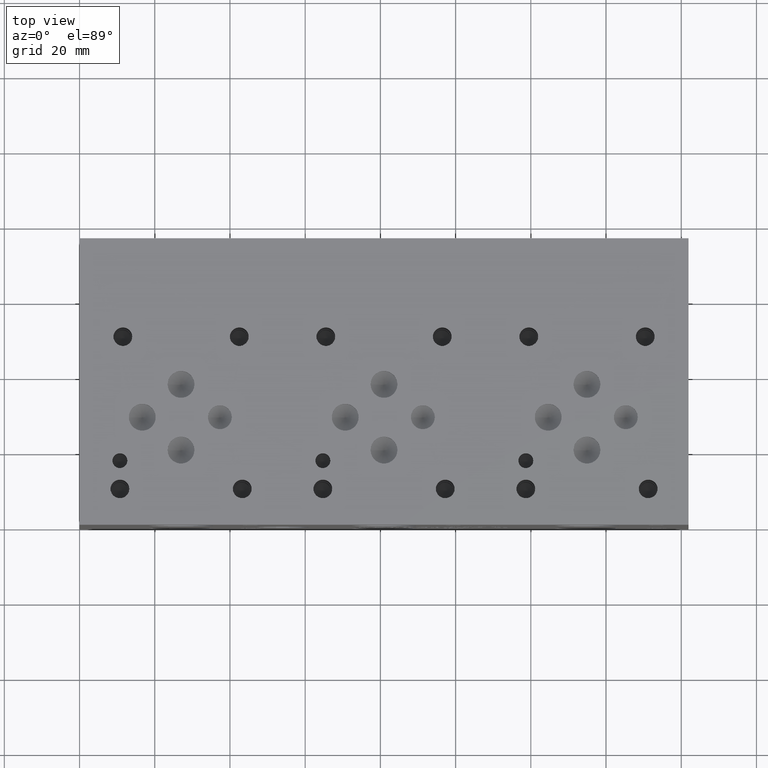
[diagram: clean part render]
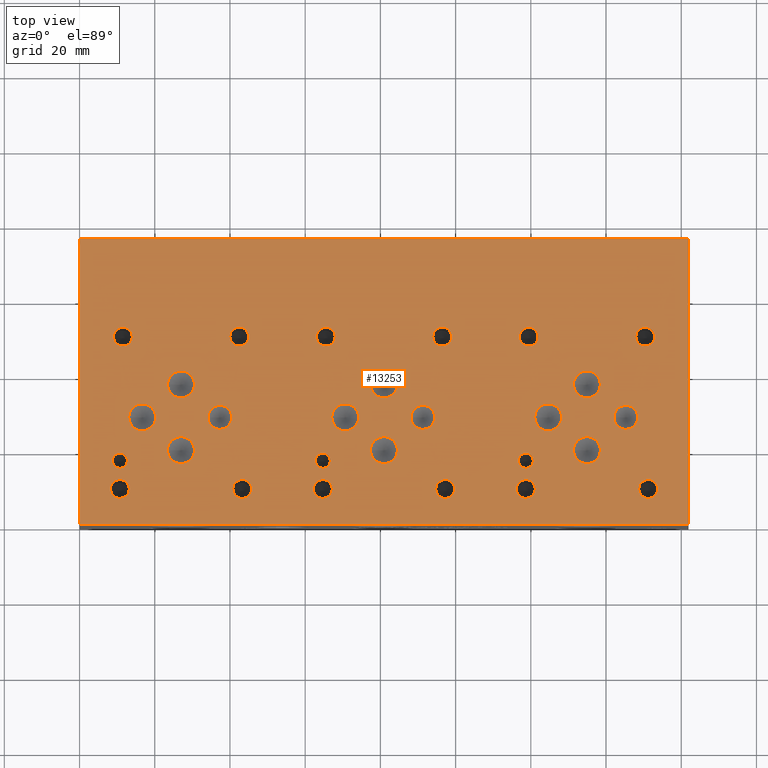
[diagram: same view with one face highlighted and labeled with its STEP entity id]
A machine part, top view. The second image highlights one B-rep face of the part: STEP entity #13253.
In plain terms, the highlighted planar face has unit normal (0, 0, 1).
Its self-contained STEP definition (entity closure, byte-faithful):
#292=CIRCLE('',#13838,2.5019);
#293=CIRCLE('',#13839,2.5019);
#299=CIRCLE('',#13849,2.5019);
#300=CIRCLE('',#13850,2.5019);
#306=CIRCLE('',#13860,2.5019);
#307=CIRCLE('',#13861,2.5019);
#313=CIRCLE('',#13871,2.5019);
#314=CIRCLE('',#13872,2.5019);
#320=CIRCLE('',#13882,2.5019);
#321=CIRCLE('',#13883,2.5019);
#327=CIRCLE('',#13893,2.5019);
#328=CIRCLE('',#13894,2.5019);
#334=CIRCLE('',#13904,2.5019);
#335=CIRCLE('',#13905,2.5019);
#341=CIRCLE('',#13915,2.5019);
#342=CIRCLE('',#13916,2.5019);
#345=CIRCLE('',#13922,3.175);
#346=CIRCLE('',#13923,3.175);
#349=CIRCLE('',#13928,3.175);
#350=CIRCLE('',#13929,3.175);
#353=CIRCLE('',#13934,3.175);
#354=CIRCLE('',#13935,3.175);
#357=CIRCLE('',#13940,3.5687);
#358=CIRCLE('',#13941,3.5687);
#361=CIRCLE('',#13946,3.5687);
#362=CIRCLE('',#13947,3.5687);
#365=CIRCLE('',#13952,3.5687);
#366=CIRCLE('',#13953,3.5687);
#369=CIRCLE('',#13958,3.5687);
#370=CIRCLE('',#13959,3.5687);
#373=CIRCLE('',#13964,3.5687);
#374=CIRCLE('',#13965,3.5687);
#377=CIRCLE('',#13970,3.5687);
#378=CIRCLE('',#13971,3.5687);
#381=CIRCLE('',#13976,3.5687);
#382=CIRCLE('',#13977,3.5687);
#385=CIRCLE('',#13982,3.5687);
#386=CIRCLE('',#13983,3.5687);
#389=CIRCLE('',#13988,3.5687);
#390=CIRCLE('',#13989,3.5687);
#393=CIRCLE('',#13994,1.9812);
#394=CIRCLE('',#13995,1.9812);
#397=CIRCLE('',#14000,1.9812);
#398=CIRCLE('',#14001,1.9812);
#401=CIRCLE('',#14006,1.9812);
#402=CIRCLE('',#14007,1.9812);
#408=CIRCLE('',#14016,2.5019);
#409=CIRCLE('',#14017,2.5019);
#415=CIRCLE('',#14027,2.5019);
#416=CIRCLE('',#14028,2.5019);
#422=CIRCLE('',#14038,2.5019);
#423=CIRCLE('',#14039,2.5019);
#429=CIRCLE('',#14049,2.5019);
#430=CIRCLE('',#14050,2.5019);
#525=FACE_BOUND('',#2379,.T.);
#526=FACE_BOUND('',#2380,.T.);
#527=FACE_BOUND('',#2381,.T.);
#528=FACE_BOUND('',#2382,.T.);
#529=FACE_BOUND('',#2383,.T.);
#530=FACE_BOUND('',#2384,.T.);
#531=FACE_BOUND('',#2385,.T.);
#532=FACE_BOUND('',#2386,.T.);
#533=FACE_BOUND('',#2387,.T.);
#534=FACE_BOUND('',#2388,.T.);
#535=FACE_BOUND('',#2389,.T.);
#536=FACE_BOUND('',#2390,.T.);
#537=FACE_BOUND('',#2391,.T.);
#538=FACE_BOUND('',#2392,.T.);
#539=FACE_BOUND('',#2393,.T.);
#540=FACE_BOUND('',#2394,.T.);
#541=FACE_BOUND('',#2395,.T.);
#542=FACE_BOUND('',#2396,.T.);
#543=FACE_BOUND('',#2397,.T.);
#544=FACE_BOUND('',#2398,.T.);
#545=FACE_BOUND('',#2399,.T.);
#546=FACE_BOUND('',#2400,.T.);
#547=FACE_BOUND('',#2401,.T.);
#548=FACE_BOUND('',#2402,.T.);
#549=FACE_BOUND('',#2403,.T.);
#550=FACE_BOUND('',#2404,.T.);
#551=FACE_BOUND('',#2405,.T.);
#922=PLANE('',#14056);
#1603=FACE_OUTER_BOUND('',#2378,.T.);
#2378=EDGE_LOOP('',(#11835,#11836,#11837,#11838));
#2379=EDGE_LOOP('',(#11839,#11840));
#2380=EDGE_LOOP('',(#11841,#11842));
#2381=EDGE_LOOP('',(#11843,#11844));
#2382=EDGE_LOOP('',(#11845,#11846));
#2383=EDGE_LOOP('',(#11847,#11848));
#2384=EDGE_LOOP('',(#11849,#11850));
#2385=EDGE_LOOP('',(#11851,#11852));
#2386=EDGE_LOOP('',(#11853,#11854));
#2387=EDGE_LOOP('',(#11855,#11856));
#2388=EDGE_LOOP('',(#11857,#11858));
#2389=EDGE_LOOP('',(#11859,#11860));
#2390=EDGE_LOOP('',(#11861,#11862));
#2391=EDGE_LOOP('',(#11863,#11864));
#2392=EDGE_LOOP('',(#11865,#11866));
#2393=EDGE_LOOP('',(#11867,#11868));
#2394=EDGE_LOOP('',(#11869,#11870));
#2395=EDGE_LOOP('',(#11871,#11872));
#2396=EDGE_LOOP('',(#11873,#11874));
#2397=EDGE_LOOP('',(#11875,#11876));
#2398=EDGE_LOOP('',(#11877,#11878));
#2399=EDGE_LOOP('',(#11879,#11880));
#2400=EDGE_LOOP('',(#11881,#11882));
#2401=EDGE_LOOP('',(#11883,#11884));
#2402=EDGE_LOOP('',(#11885,#11886));
#2403=EDGE_LOOP('',(#11887,#11888));
#2404=EDGE_LOOP('',(#11889,#11890));
#2405=EDGE_LOOP('',(#11891,#11892));
#2441=LINE('',#17032,#3626);
#2501=LINE('',#17307,#3686);
#2851=LINE('',#19954,#4036);
#3591=LINE('',#22929,#4776);
#3626=VECTOR('',#14114,10.);
#3686=VECTOR('',#14228,10.);
#4036=VECTOR('',#14776,10.);
#4776=VECTOR('',#16814,10.);
#5169=VERTEX_POINT('',#17029);
#5170=VERTEX_POINT('',#17031);
#5229=VERTEX_POINT('',#17304);
#5230=VERTEX_POINT('',#17306);
#6242=VERTEX_POINT('',#22482);
#6243=VERTEX_POINT('',#22483);
#6250=VERTEX_POINT('',#22504);
#6251=VERTEX_POINT('',#22505);
#6258=VERTEX_POINT('',#22526);
#6259=VERTEX_POINT('',#22527);
#6266=VERTEX_POINT('',#22548);
#6267=VERTEX_POINT('',#22549);
#6274=VERTEX_POINT('',#22570);
#6275=VERTEX_POINT('',#22571);
#6282=VERTEX_POINT('',#22592);
#6283=VERTEX_POINT('',#22593);
#6290=VERTEX_POINT('',#22614);
#6291=VERTEX_POINT('',#22615);
#6298=VERTEX_POINT('',#22636);
#6299=VERTEX_POINT('',#22637);
#6303=VERTEX_POINT('',#22651);
#6304=VERTEX_POINT('',#22652);
#6308=VERTEX_POINT('',#22664);
#6309=VERTEX_POINT('',#22665);
#6313=VERTEX_POINT('',#22677);
#6314=VERTEX_POINT('',#22678);
#6318=VERTEX_POINT('',#22690);
#6319=VERTEX_POINT('',#22691);
#6323=VERTEX_POINT('',#22703);
#6324=VERTEX_POINT('',#22704);
#6328=VERTEX_POINT('',#22716);
#6329=VERTEX_POINT('',#22717);
#6333=VERTEX_POINT('',#22729);
#6334=VERTEX_POINT('',#22730);
#6338=VERTEX_POINT('',#22742);
#6339=VERTEX_POINT('',#22743);
#6343=VERTEX_POINT('',#22755);
#6344=VERTEX_POINT('',#22756);
#6348=VERTEX_POINT('',#22768);
#6349=VERTEX_POINT('',#22769);
#6353=VERTEX_POINT('',#22781);
#6354=VERTEX_POINT('',#22782);
#6358=VERTEX_POINT('',#22794);
#6359=VERTEX_POINT('',#22795);
#6363=VERTEX_POINT('',#22807);
#6364=VERTEX_POINT('',#22808);
#6368=VERTEX_POINT('',#22820);
#6369=VERTEX_POINT('',#22821);
#6373=VERTEX_POINT('',#22833);
#6374=VERTEX_POINT('',#22834);
#6381=VERTEX_POINT('',#22853);
#6382=VERTEX_POINT('',#22854);
#6389=VERTEX_POINT('',#22875);
#6390=VERTEX_POINT('',#22876);
#6397=VERTEX_POINT('',#22897);
#6398=VERTEX_POINT('',#22898);
#6405=VERTEX_POINT('',#22919);
#6406=VERTEX_POINT('',#22920);
#6457=EDGE_CURVE('',#5170,#5169,#2441,.T.);
#6541=EDGE_CURVE('',#5230,#5229,#2501,.T.);
#7125=EDGE_CURVE('',#5229,#5170,#2851,.T.);
#8031=EDGE_CURVE('',#6242,#6243,#292,.T.);
#8032=EDGE_CURVE('',#6243,#6242,#293,.T.);
#8041=EDGE_CURVE('',#6250,#6251,#299,.T.);
#8042=EDGE_CURVE('',#6251,#6250,#300,.T.);
#8051=EDGE_CURVE('',#6258,#6259,#306,.T.);
#8052=EDGE_CURVE('',#6259,#6258,#307,.T.);
#8061=EDGE_CURVE('',#6266,#6267,#313,.T.);
#8062=EDGE_CURVE('',#6267,#6266,#314,.T.);
#8071=EDGE_CURVE('',#6274,#6275,#320,.T.);
#8072=EDGE_CURVE('',#6275,#6274,#321,.T.);
#8081=EDGE_CURVE('',#6282,#6283,#327,.T.);
#8082=EDGE_CURVE('',#6283,#6282,#328,.T.);
#8091=EDGE_CURVE('',#6290,#6291,#334,.T.);
#8092=EDGE_CURVE('',#6291,#6290,#335,.T.);
#8101=EDGE_CURVE('',#6298,#6299,#341,.T.);
#8102=EDGE_CURVE('',#6299,#6298,#342,.T.);
#8108=EDGE_CURVE('',#6303,#6304,#345,.T.);
#8109=EDGE_CURVE('',#6304,#6303,#346,.T.);
#8114=EDGE_CURVE('',#6308,#6309,#349,.T.);
#8115=EDGE_CURVE('',#6309,#6308,#350,.T.);
#8120=EDGE_CURVE('',#6313,#6314,#353,.T.);
#8121=EDGE_CURVE('',#6314,#6313,#354,.T.);
#8126=EDGE_CURVE('',#6318,#6319,#357,.T.);
#8127=EDGE_CURVE('',#6319,#6318,#358,.T.);
#8132=EDGE_CURVE('',#6323,#6324,#361,.T.);
#8133=EDGE_CURVE('',#6324,#6323,#362,.T.);
#8138=EDGE_CURVE('',#6328,#6329,#365,.T.);
#8139=EDGE_CURVE('',#6329,#6328,#366,.T.);
#8144=EDGE_CURVE('',#6333,#6334,#369,.T.);
#8145=EDGE_CURVE('',#6334,#6333,#370,.T.);
#8150=EDGE_CURVE('',#6338,#6339,#373,.T.);
#8151=EDGE_CURVE('',#6339,#6338,#374,.T.);
#8156=EDGE_CURVE('',#6343,#6344,#377,.T.);
#8157=EDGE_CURVE('',#6344,#6343,#378,.T.);
#8162=EDGE_CURVE('',#6348,#6349,#381,.T.);
#8163=EDGE_CURVE('',#6349,#6348,#382,.T.);
#8168=EDGE_CURVE('',#6353,#6354,#385,.T.);
#8169=EDGE_CURVE('',#6354,#6353,#386,.T.);
#8174=EDGE_CURVE('',#6358,#6359,#389,.T.);
#8175=EDGE_CURVE('',#6359,#6358,#390,.T.);
#8180=EDGE_CURVE('',#6363,#6364,#393,.T.);
#8181=EDGE_CURVE('',#6364,#6363,#394,.T.);
#8186=EDGE_CURVE('',#6368,#6369,#397,.T.);
#8187=EDGE_CURVE('',#6369,#6368,#398,.T.);
#8192=EDGE_CURVE('',#6373,#6374,#401,.T.);
#8193=EDGE_CURVE('',#6374,#6373,#402,.T.);
#8201=EDGE_CURVE('',#6381,#6382,#408,.T.);
#8202=EDGE_CURVE('',#6382,#6381,#409,.T.);
#8211=EDGE_CURVE('',#6389,#6390,#415,.T.);
#8212=EDGE_CURVE('',#6390,#6389,#416,.T.);
#8221=EDGE_CURVE('',#6397,#6398,#422,.T.);
#8222=EDGE_CURVE('',#6398,#6397,#423,.T.);
#8231=EDGE_CURVE('',#6405,#6406,#429,.T.);
#8232=EDGE_CURVE('',#6406,#6405,#430,.T.);
#8236=EDGE_CURVE('',#5169,#5230,#3591,.T.);
#11835=ORIENTED_EDGE('',*,*,#7125,.T.);
#11836=ORIENTED_EDGE('',*,*,#6457,.T.);
#11837=ORIENTED_EDGE('',*,*,#8236,.T.);
#11838=ORIENTED_EDGE('',*,*,#6541,.T.);
#11839=ORIENTED_EDGE('',*,*,#8031,.T.);
#11840=ORIENTED_EDGE('',*,*,#8032,.T.);
#11841=ORIENTED_EDGE('',*,*,#8041,.T.);
#11842=ORIENTED_EDGE('',*,*,#8042,.T.);
#11843=ORIENTED_EDGE('',*,*,#8051,.T.);
#11844=ORIENTED_EDGE('',*,*,#8052,.T.);
#11845=ORIENTED_EDGE('',*,*,#8061,.T.);
#11846=ORIENTED_EDGE('',*,*,#8062,.T.);
#11847=ORIENTED_EDGE('',*,*,#8071,.T.);
#11848=ORIENTED_EDGE('',*,*,#8072,.T.);
#11849=ORIENTED_EDGE('',*,*,#8081,.T.);
#11850=ORIENTED_EDGE('',*,*,#8082,.T.);
#11851=ORIENTED_EDGE('',*,*,#8091,.T.);
#11852=ORIENTED_EDGE('',*,*,#8092,.T.);
#11853=ORIENTED_EDGE('',*,*,#8101,.T.);
#11854=ORIENTED_EDGE('',*,*,#8102,.T.);
#11855=ORIENTED_EDGE('',*,*,#8108,.T.);
#11856=ORIENTED_EDGE('',*,*,#8109,.T.);
#11857=ORIENTED_EDGE('',*,*,#8114,.T.);
#11858=ORIENTED_EDGE('',*,*,#8115,.T.);
#11859=ORIENTED_EDGE('',*,*,#8120,.T.);
#11860=ORIENTED_EDGE('',*,*,#8121,.T.);
#11861=ORIENTED_EDGE('',*,*,#8126,.T.);
#11862=ORIENTED_EDGE('',*,*,#8127,.T.);
#11863=ORIENTED_EDGE('',*,*,#8132,.T.);
#11864=ORIENTED_EDGE('',*,*,#8133,.T.);
#11865=ORIENTED_EDGE('',*,*,#8138,.T.);
#11866=ORIENTED_EDGE('',*,*,#8139,.T.);
#11867=ORIENTED_EDGE('',*,*,#8144,.T.);
#11868=ORIENTED_EDGE('',*,*,#8145,.T.);
#11869=ORIENTED_EDGE('',*,*,#8150,.T.);
#11870=ORIENTED_EDGE('',*,*,#8151,.T.);
#11871=ORIENTED_EDGE('',*,*,#8156,.T.);
#11872=ORIENTED_EDGE('',*,*,#8157,.T.);
#11873=ORIENTED_EDGE('',*,*,#8162,.T.);
#11874=ORIENTED_EDGE('',*,*,#8163,.T.);
#11875=ORIENTED_EDGE('',*,*,#8168,.T.);
#11876=ORIENTED_EDGE('',*,*,#8169,.T.);
#11877=ORIENTED_EDGE('',*,*,#8174,.T.);
#11878=ORIENTED_EDGE('',*,*,#8175,.T.);
#11879=ORIENTED_EDGE('',*,*,#8180,.T.);
#11880=ORIENTED_EDGE('',*,*,#8181,.T.);
#11881=ORIENTED_EDGE('',*,*,#8186,.T.);
#11882=ORIENTED_EDGE('',*,*,#8187,.T.);
#11883=ORIENTED_EDGE('',*,*,#8192,.T.);
#11884=ORIENTED_EDGE('',*,*,#8193,.T.);
#11885=ORIENTED_EDGE('',*,*,#8201,.T.);
#11886=ORIENTED_EDGE('',*,*,#8202,.T.);
#11887=ORIENTED_EDGE('',*,*,#8211,.T.);
#11888=ORIENTED_EDGE('',*,*,#8212,.T.);
#11889=ORIENTED_EDGE('',*,*,#8221,.T.);
#11890=ORIENTED_EDGE('',*,*,#8222,.T.);
#11891=ORIENTED_EDGE('',*,*,#8231,.T.);
#11892=ORIENTED_EDGE('',*,*,#8232,.T.);
#13253=ADVANCED_FACE('',(#1603,#525,#526,#527,#528,#529,#530,#531,#532,
#533,#534,#535,#536,#537,#538,#539,#540,#541,#542,#543,#544,#545,#546,#547,
#548,#549,#550,#551),#922,.T.);
#13838=AXIS2_PLACEMENT_3D('',#22484,#16316,#16317);
#13839=AXIS2_PLACEMENT_3D('',#22485,#16318,#16319);
#13849=AXIS2_PLACEMENT_3D('',#22506,#16341,#16342);
#13850=AXIS2_PLACEMENT_3D('',#22507,#16343,#16344);
#13860=AXIS2_PLACEMENT_3D('',#22528,#16366,#16367);
#13861=AXIS2_PLACEMENT_3D('',#22529,#16368,#16369);
#13871=AXIS2_PLACEMENT_3D('',#22550,#16391,#16392);
#13872=AXIS2_PLACEMENT_3D('',#22551,#16393,#16394);
#13882=AXIS2_PLACEMENT_3D('',#22572,#16416,#16417);
#13883=AXIS2_PLACEMENT_3D('',#22573,#16418,#16419);
#13893=AXIS2_PLACEMENT_3D('',#22594,#16441,#16442);
#13894=AXIS2_PLACEMENT_3D('',#22595,#16443,#16444);
#13904=AXIS2_PLACEMENT_3D('',#22616,#16466,#16467);
#13905=AXIS2_PLACEMENT_3D('',#22617,#16468,#16469);
#13915=AXIS2_PLACEMENT_3D('',#22638,#16491,#16492);
#13916=AXIS2_PLACEMENT_3D('',#22639,#16493,#16494);
#13922=AXIS2_PLACEMENT_3D('',#22653,#16508,#16509);
#13923=AXIS2_PLACEMENT_3D('',#22654,#16510,#16511);
#13928=AXIS2_PLACEMENT_3D('',#22666,#16522,#16523);
#13929=AXIS2_PLACEMENT_3D('',#22667,#16524,#16525);
#13934=AXIS2_PLACEMENT_3D('',#22679,#16536,#16537);
#13935=AXIS2_PLACEMENT_3D('',#22680,#16538,#16539);
#13940=AXIS2_PLACEMENT_3D('',#22692,#16550,#16551);
#13941=AXIS2_PLACEMENT_3D('',#22693,#16552,#16553);
#13946=AXIS2_PLACEMENT_3D('',#22705,#16564,#16565);
#13947=AXIS2_PLACEMENT_3D('',#22706,#16566,#16567);
#13952=AXIS2_PLACEMENT_3D('',#22718,#16578,#16579);
#13953=AXIS2_PLACEMENT_3D('',#22719,#16580,#16581);
#13958=AXIS2_PLACEMENT_3D('',#22731,#16592,#16593);
#13959=AXIS2_PLACEMENT_3D('',#22732,#16594,#16595);
#13964=AXIS2_PLACEMENT_3D('',#22744,#16606,#16607);
#13965=AXIS2_PLACEMENT_3D('',#22745,#16608,#16609);
#13970=AXIS2_PLACEMENT_3D('',#22757,#16620,#16621);
#13971=AXIS2_PLACEMENT_3D('',#22758,#16622,#16623);
#13976=AXIS2_PLACEMENT_3D('',#22770,#16634,#16635);
#13977=AXIS2_PLACEMENT_3D('',#22771,#16636,#16637);
#13982=AXIS2_PLACEMENT_3D('',#22783,#16648,#16649);
#13983=AXIS2_PLACEMENT_3D('',#22784,#16650,#16651);
#13988=AXIS2_PLACEMENT_3D('',#22796,#16662,#16663);
#13989=AXIS2_PLACEMENT_3D('',#22797,#16664,#16665);
#13994=AXIS2_PLACEMENT_3D('',#22809,#16676,#16677);
#13995=AXIS2_PLACEMENT_3D('',#22810,#16678,#16679);
#14000=AXIS2_PLACEMENT_3D('',#22822,#16690,#16691);
#14001=AXIS2_PLACEMENT_3D('',#22823,#16692,#16693);
#14006=AXIS2_PLACEMENT_3D('',#22835,#16704,#16705);
#14007=AXIS2_PLACEMENT_3D('',#22836,#16706,#16707);
#14016=AXIS2_PLACEMENT_3D('',#22855,#16726,#16727);
#14017=AXIS2_PLACEMENT_3D('',#22856,#16728,#16729);
#14027=AXIS2_PLACEMENT_3D('',#22877,#16751,#16752);
#14028=AXIS2_PLACEMENT_3D('',#22878,#16753,#16754);
#14038=AXIS2_PLACEMENT_3D('',#22899,#16776,#16777);
#14039=AXIS2_PLACEMENT_3D('',#22900,#16778,#16779);
#14049=AXIS2_PLACEMENT_3D('',#22921,#16801,#16802);
#14050=AXIS2_PLACEMENT_3D('',#22922,#16803,#16804);
#14056=AXIS2_PLACEMENT_3D('',#22932,#16819,#16820);
#14114=DIRECTION('',(0.,1.,0.));
#14228=DIRECTION('',(0.,-1.,0.));
#14776=DIRECTION('',(1.,0.,0.));
#16316=DIRECTION('center_axis',(0.,0.,-1.));
#16317=DIRECTION('ref_axis',(1.,0.,0.));
#16318=DIRECTION('center_axis',(0.,0.,-1.));
#16319=DIRECTION('ref_axis',(1.,0.,0.));
#16341=DIRECTION('center_axis',(0.,0.,-1.));
#16342=DIRECTION('ref_axis',(1.,0.,0.));
#16343=DIRECTION('center_axis',(0.,0.,-1.));
#16344=DIRECTION('ref_axis',(1.,0.,0.));
#16366=DIRECTION('center_axis',(0.,0.,-1.));
#16367=DIRECTION('ref_axis',(1.,0.,0.));
#16368=DIRECTION('center_axis',(0.,0.,-1.));
#16369=DIRECTION('ref_axis',(1.,0.,0.));
#16391=DIRECTION('center_axis',(0.,0.,-1.));
#16392=DIRECTION('ref_axis',(1.,0.,0.));
#16393=DIRECTION('center_axis',(0.,0.,-1.));
#16394=DIRECTION('ref_axis',(1.,0.,0.));
#16416=DIRECTION('center_axis',(0.,0.,-1.));
#16417=DIRECTION('ref_axis',(1.,0.,0.));
#16418=DIRECTION('center_axis',(0.,0.,-1.));
#16419=DIRECTION('ref_axis',(1.,0.,0.));
#16441=DIRECTION('center_axis',(0.,0.,-1.));
#16442=DIRECTION('ref_axis',(1.,0.,0.));
#16443=DIRECTION('center_axis',(0.,0.,-1.));
#16444=DIRECTION('ref_axis',(1.,0.,0.));
#16466=DIRECTION('center_axis',(0.,0.,-1.));
#16467=DIRECTION('ref_axis',(1.,0.,0.));
#16468=DIRECTION('center_axis',(0.,0.,-1.));
#16469=DIRECTION('ref_axis',(1.,0.,0.));
#16491=DIRECTION('center_axis',(0.,0.,-1.));
#16492=DIRECTION('ref_axis',(1.,0.,0.));
#16493=DIRECTION('center_axis',(0.,0.,-1.));
#16494=DIRECTION('ref_axis',(1.,0.,0.));
#16508=DIRECTION('center_axis',(0.,0.,-1.));
#16509=DIRECTION('ref_axis',(1.,0.,0.));
#16510=DIRECTION('center_axis',(0.,0.,-1.));
#16511=DIRECTION('ref_axis',(1.,0.,0.));
#16522=DIRECTION('center_axis',(0.,0.,-1.));
#16523=DIRECTION('ref_axis',(1.,0.,0.));
#16524=DIRECTION('center_axis',(0.,0.,-1.));
#16525=DIRECTION('ref_axis',(1.,0.,0.));
#16536=DIRECTION('center_axis',(0.,0.,-1.));
#16537=DIRECTION('ref_axis',(1.,0.,0.));
#16538=DIRECTION('center_axis',(0.,0.,-1.));
#16539=DIRECTION('ref_axis',(1.,0.,0.));
#16550=DIRECTION('center_axis',(0.,0.,-1.));
#16551=DIRECTION('ref_axis',(1.,0.,0.));
#16552=DIRECTION('center_axis',(0.,0.,-1.));
#16553=DIRECTION('ref_axis',(1.,0.,0.));
#16564=DIRECTION('center_axis',(0.,0.,-1.));
#16565=DIRECTION('ref_axis',(1.,0.,0.));
#16566=DIRECTION('center_axis',(0.,0.,-1.));
#16567=DIRECTION('ref_axis',(1.,0.,0.));
#16578=DIRECTION('center_axis',(0.,0.,-1.));
#16579=DIRECTION('ref_axis',(1.,0.,0.));
#16580=DIRECTION('center_axis',(0.,0.,-1.));
#16581=DIRECTION('ref_axis',(1.,0.,0.));
#16592=DIRECTION('center_axis',(0.,0.,-1.));
#16593=DIRECTION('ref_axis',(1.,0.,0.));
#16594=DIRECTION('center_axis',(0.,0.,-1.));
#16595=DIRECTION('ref_axis',(1.,0.,0.));
#16606=DIRECTION('center_axis',(0.,0.,-1.));
#16607=DIRECTION('ref_axis',(1.,0.,0.));
#16608=DIRECTION('center_axis',(0.,0.,-1.));
#16609=DIRECTION('ref_axis',(1.,0.,0.));
#16620=DIRECTION('center_axis',(0.,0.,-1.));
#16621=DIRECTION('ref_axis',(1.,0.,0.));
#16622=DIRECTION('center_axis',(0.,0.,-1.));
#16623=DIRECTION('ref_axis',(1.,0.,0.));
#16634=DIRECTION('center_axis',(0.,0.,-1.));
#16635=DIRECTION('ref_axis',(1.,0.,0.));
#16636=DIRECTION('center_axis',(0.,0.,-1.));
#16637=DIRECTION('ref_axis',(1.,0.,0.));
#16648=DIRECTION('center_axis',(0.,0.,-1.));
#16649=DIRECTION('ref_axis',(1.,0.,0.));
#16650=DIRECTION('center_axis',(0.,0.,-1.));
#16651=DIRECTION('ref_axis',(1.,0.,0.));
#16662=DIRECTION('center_axis',(0.,0.,-1.));
#16663=DIRECTION('ref_axis',(1.,0.,0.));
#16664=DIRECTION('center_axis',(0.,0.,-1.));
#16665=DIRECTION('ref_axis',(1.,0.,0.));
#16676=DIRECTION('center_axis',(0.,0.,-1.));
#16677=DIRECTION('ref_axis',(1.,0.,0.));
#16678=DIRECTION('center_axis',(0.,0.,-1.));
#16679=DIRECTION('ref_axis',(1.,0.,0.));
#16690=DIRECTION('center_axis',(0.,0.,-1.));
#16691=DIRECTION('ref_axis',(1.,0.,0.));
#16692=DIRECTION('center_axis',(0.,0.,-1.));
#16693=DIRECTION('ref_axis',(1.,0.,0.));
#16704=DIRECTION('center_axis',(0.,0.,-1.));
#16705=DIRECTION('ref_axis',(1.,0.,0.));
#16706=DIRECTION('center_axis',(0.,0.,-1.));
#16707=DIRECTION('ref_axis',(1.,0.,0.));
#16726=DIRECTION('center_axis',(0.,0.,-1.));
#16727=DIRECTION('ref_axis',(1.,0.,0.));
#16728=DIRECTION('center_axis',(0.,0.,-1.));
#16729=DIRECTION('ref_axis',(1.,0.,0.));
#16751=DIRECTION('center_axis',(0.,0.,-1.));
#16752=DIRECTION('ref_axis',(1.,0.,0.));
#16753=DIRECTION('center_axis',(0.,0.,-1.));
#16754=DIRECTION('ref_axis',(1.,0.,0.));
#16776=DIRECTION('center_axis',(0.,0.,-1.));
#16777=DIRECTION('ref_axis',(1.,0.,0.));
#16778=DIRECTION('center_axis',(0.,0.,-1.));
#16779=DIRECTION('ref_axis',(1.,0.,0.));
#16801=DIRECTION('center_axis',(0.,0.,-1.));
#16802=DIRECTION('ref_axis',(1.,0.,0.));
#16803=DIRECTION('center_axis',(0.,0.,-1.));
#16804=DIRECTION('ref_axis',(1.,0.,0.));
#16814=DIRECTION('',(-1.,0.,0.));
#16819=DIRECTION('center_axis',(0.,0.,1.));
#16820=DIRECTION('ref_axis',(1.,0.,0.));
#17029=CARTESIAN_POINT('',(161.925,76.2,76.2));
#17031=CARTESIAN_POINT('',(161.925,0.,76.2));
#17032=CARTESIAN_POINT('',(161.925,0.,76.2));
#17304=CARTESIAN_POINT('',(0.,0.,76.2));
#17306=CARTESIAN_POINT('',(0.,76.2,76.2));
#17307=CARTESIAN_POINT('',(0.,76.2,76.2));
#19954=CARTESIAN_POINT('',(0.,0.,76.2));
#22482=CARTESIAN_POINT('',(153.7081,9.525,76.2));
#22483=CARTESIAN_POINT('',(148.7043,9.525,76.2));
#22484=CARTESIAN_POINT('Origin',(151.2062,9.525,76.2));
#22485=CARTESIAN_POINT('Origin',(151.2062,9.525,76.2));
#22504=CARTESIAN_POINT('',(121.9581,50.0126,76.2));
#22505=CARTESIAN_POINT('',(116.9543,50.0126,76.2));
#22506=CARTESIAN_POINT('Origin',(119.4562,50.0126,76.2));
#22507=CARTESIAN_POINT('Origin',(119.4562,50.0126,76.2));
#22526=CARTESIAN_POINT('',(99.7331,9.525,76.2));
#22527=CARTESIAN_POINT('',(94.7293,9.525,76.2));
#22528=CARTESIAN_POINT('Origin',(97.2312,9.525,76.2));
#22529=CARTESIAN_POINT('Origin',(97.2312,9.525,76.2));
#22548=CARTESIAN_POINT('',(67.9831,50.0126,76.2));
#22549=CARTESIAN_POINT('',(62.9793,50.0126,76.2));
#22550=CARTESIAN_POINT('Origin',(65.4812,50.0126,76.2));
#22551=CARTESIAN_POINT('Origin',(65.4812,50.0126,76.2));
#22570=CARTESIAN_POINT('',(98.9457,50.0126,76.2));
#22571=CARTESIAN_POINT('',(93.9419,50.0126,76.2));
#22572=CARTESIAN_POINT('Origin',(96.4438,50.0126,76.2));
#22573=CARTESIAN_POINT('Origin',(96.4438,50.0126,76.2));
#22592=CARTESIAN_POINT('',(67.1957,9.525,76.2));
#22593=CARTESIAN_POINT('',(62.1919,9.525,76.2));
#22594=CARTESIAN_POINT('Origin',(64.6938,9.525,76.2));
#22595=CARTESIAN_POINT('Origin',(64.6938,9.525,76.2));
#22614=CARTESIAN_POINT('',(152.9207,50.0126,76.2));
#22615=CARTESIAN_POINT('',(147.9169,50.0126,76.2));
#22616=CARTESIAN_POINT('Origin',(150.4188,50.0126,76.2));
#22617=CARTESIAN_POINT('Origin',(150.4188,50.0126,76.2));
#22636=CARTESIAN_POINT('',(121.1707,9.525,76.2));
#22637=CARTESIAN_POINT('',(116.1669,9.525,76.2));
#22638=CARTESIAN_POINT('Origin',(118.6688,9.525,76.2));
#22639=CARTESIAN_POINT('Origin',(118.6688,9.525,76.2));
#22651=CARTESIAN_POINT('',(94.4626,28.575,76.2));
#22652=CARTESIAN_POINT('',(88.1126,28.575,76.2));
#22653=CARTESIAN_POINT('Origin',(91.2876,28.575,76.2));
#22654=CARTESIAN_POINT('Origin',(91.2876,28.575,76.2));
#22664=CARTESIAN_POINT('',(40.4876,28.575,76.2));
#22665=CARTESIAN_POINT('',(34.1376,28.575,76.2));
#22666=CARTESIAN_POINT('Origin',(37.3126,28.575,76.2));
#22667=CARTESIAN_POINT('Origin',(37.3126,28.575,76.2));
#22677=CARTESIAN_POINT('',(148.4376,28.575,76.2));
#22678=CARTESIAN_POINT('',(142.0876,28.575,76.2));
#22679=CARTESIAN_POINT('Origin',(145.2626,28.575,76.2));
#22680=CARTESIAN_POINT('Origin',(145.2626,28.575,76.2));
#22690=CARTESIAN_POINT('',(138.4935,37.3126,76.2));
#22691=CARTESIAN_POINT('',(131.3561,37.3126,76.2));
#22692=CARTESIAN_POINT('Origin',(134.9248,37.3126,76.2));
#22693=CARTESIAN_POINT('Origin',(134.9248,37.3126,76.2));
#22703=CARTESIAN_POINT('',(84.5185,19.8374,76.2));
#22704=CARTESIAN_POINT('',(77.3811,19.8374,76.2));
#22705=CARTESIAN_POINT('Origin',(80.9498,19.8374,76.2));
#22706=CARTESIAN_POINT('Origin',(80.9498,19.8374,76.2));
#22716=CARTESIAN_POINT('',(74.2061,28.575,76.2));
#22717=CARTESIAN_POINT('',(67.0687,28.575,76.2));
#22718=CARTESIAN_POINT('Origin',(70.6374,28.575,76.2));
#22719=CARTESIAN_POINT('Origin',(70.6374,28.575,76.2));
#22729=CARTESIAN_POINT('',(30.5435,37.3126,76.2));
#22730=CARTESIAN_POINT('',(23.4061,37.3126,76.2));
#22731=CARTESIAN_POINT('Origin',(26.9748,37.3126,76.2));
#22732=CARTESIAN_POINT('Origin',(26.9748,37.3126,76.2));
#22742=CARTESIAN_POINT('',(20.2311,28.575,76.2));
#22743=CARTESIAN_POINT('',(13.0937,28.575,76.2));
#22744=CARTESIAN_POINT('Origin',(16.6624,28.575,76.2));
#22745=CARTESIAN_POINT('Origin',(16.6624,28.575,76.2));
#22755=CARTESIAN_POINT('',(30.5435,19.8374,76.2));
#22756=CARTESIAN_POINT('',(23.4061,19.8374,76.2));
#22757=CARTESIAN_POINT('Origin',(26.9748,19.8374,76.2));
#22758=CARTESIAN_POINT('Origin',(26.9748,19.8374,76.2));
#22768=CARTESIAN_POINT('',(84.5185,37.3126,76.2));
#22769=CARTESIAN_POINT('',(77.3811,37.3126,76.2));
#22770=CARTESIAN_POINT('Origin',(80.9498,37.3126,76.2));
#22771=CARTESIAN_POINT('Origin',(80.9498,37.3126,76.2));
#22781=CARTESIAN_POINT('',(128.1811,28.575,76.2));
#22782=CARTESIAN_POINT('',(121.0437,28.575,76.2));
#22783=CARTESIAN_POINT('Origin',(124.6124,28.575,76.2));
#22784=CARTESIAN_POINT('Origin',(124.6124,28.575,76.2));
#22794=CARTESIAN_POINT('',(138.4935,19.8374,76.2));
#22795=CARTESIAN_POINT('',(131.3561,19.8374,76.2));
#22796=CARTESIAN_POINT('Origin',(134.9248,19.8374,76.2));
#22797=CARTESIAN_POINT('Origin',(134.9248,19.8374,76.2));
#22807=CARTESIAN_POINT('',(66.675,17.018,76.2));
#22808=CARTESIAN_POINT('',(62.7126,17.018,76.2));
#22809=CARTESIAN_POINT('Origin',(64.6938,17.018,76.2));
#22810=CARTESIAN_POINT('Origin',(64.6938,17.018,76.2));
#22820=CARTESIAN_POINT('',(12.7,17.018,76.2));
#22821=CARTESIAN_POINT('',(8.7376,17.018,76.2));
#22822=CARTESIAN_POINT('Origin',(10.7188,17.018,76.2));
#22823=CARTESIAN_POINT('Origin',(10.7188,17.018,76.2));
#22833=CARTESIAN_POINT('',(120.65,17.018,76.2));
#22834=CARTESIAN_POINT('',(116.6876,17.018,76.2));
#22835=CARTESIAN_POINT('Origin',(118.6688,17.018,76.2));
#22836=CARTESIAN_POINT('Origin',(118.6688,17.018,76.2));
#22853=CARTESIAN_POINT('',(45.7581,9.525,76.2));
#22854=CARTESIAN_POINT('',(40.7543,9.525,76.2));
#22855=CARTESIAN_POINT('Origin',(43.2562,9.525,76.2));
#22856=CARTESIAN_POINT('Origin',(43.2562,9.525,76.2));
#22875=CARTESIAN_POINT('',(14.0081,50.0126,76.2));
#22876=CARTESIAN_POINT('',(9.0043,50.0126,76.2));
#22877=CARTESIAN_POINT('Origin',(11.5062,50.0126,76.2));
#22878=CARTESIAN_POINT('Origin',(11.5062,50.0126,76.2));
#22897=CARTESIAN_POINT('',(44.9707,50.0126,76.2));
#22898=CARTESIAN_POINT('',(39.9669,50.0126,76.2));
#22899=CARTESIAN_POINT('Origin',(42.4688,50.0126,76.2));
#22900=CARTESIAN_POINT('Origin',(42.4688,50.0126,76.2));
#22919=CARTESIAN_POINT('',(13.2207,9.525,76.2));
#22920=CARTESIAN_POINT('',(8.2169,9.525,76.2));
#22921=CARTESIAN_POINT('Origin',(10.7188,9.525,76.2));
#22922=CARTESIAN_POINT('Origin',(10.7188,9.525,76.2));
#22929=CARTESIAN_POINT('',(161.925,76.2,76.2));
#22932=CARTESIAN_POINT('Origin',(80.9625,38.1,76.2));